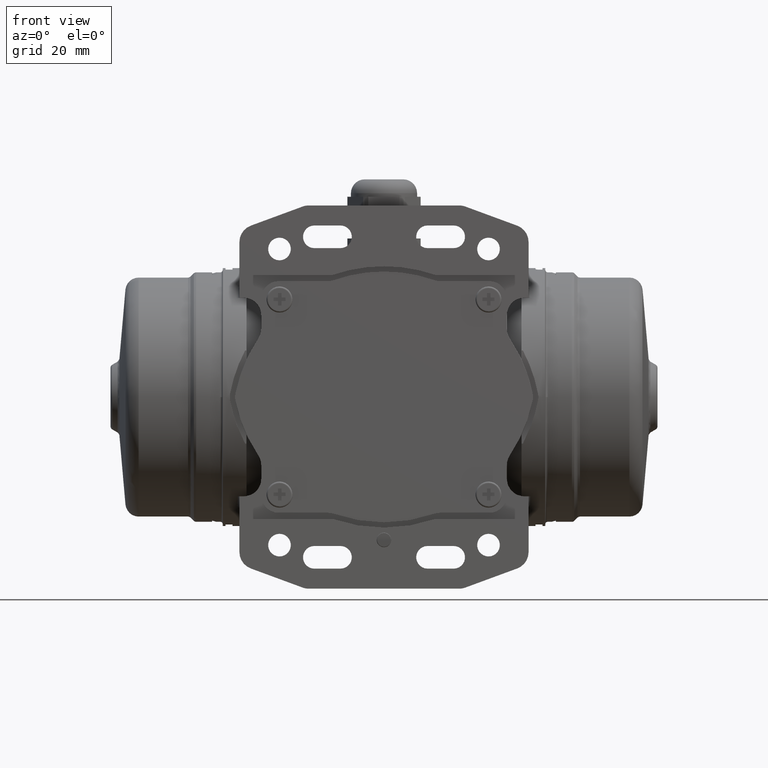
[diagram: clean part render]
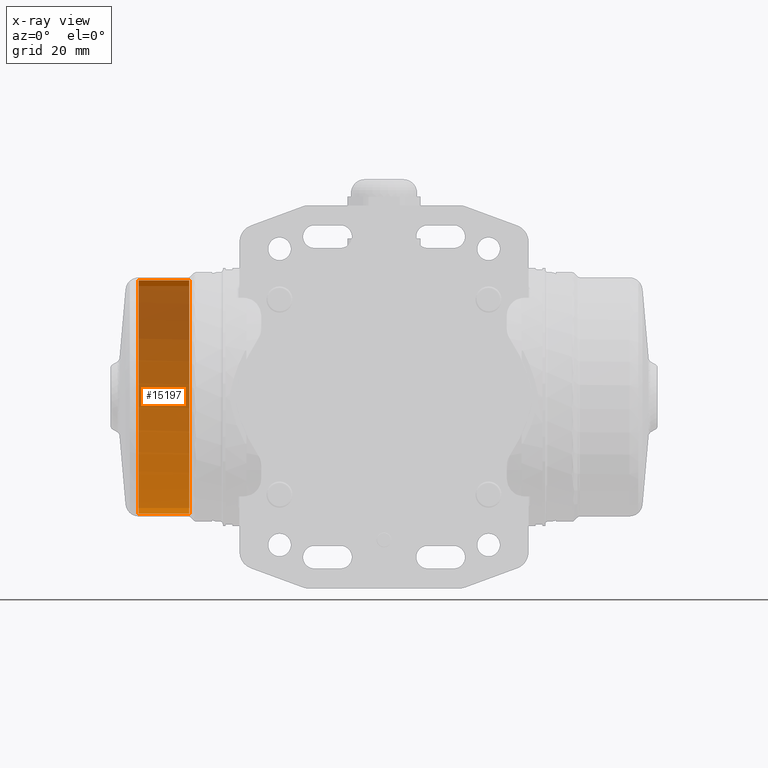
[diagram: x-ray — body ghosted, one internal face saturated and labeled with its STEP entity id]
A machine part, front view, then the same camera in x-ray: the body is ghosted and one INTERNAL B-rep face — a face not visible from any outside direction — is saturated and labeled: STEP entity #15197.
In plain terms, the highlighted cylindrical surface (partial cylindrical patch) has radius 33.5 mm, axis along (-1, -0, 0).
Its self-contained STEP definition (entity closure, byte-faithful):
#15032 = EDGE_CURVE ( 'NONE', #15047, #15035, #23501, .T. ) ;
#15035 = VERTEX_POINT ( 'NONE', #23442 ) ;
#15038 = ORIENTED_EDGE ( 'NONE', *, *, #15187, .F. ) ;
#15047 = VERTEX_POINT ( 'NONE', #23853 ) ;
#15051 = VERTEX_POINT ( 'NONE', #23857 ) ;
#15052 = EDGE_CURVE ( 'NONE', #15047, #15051, #23914, .T. ) ;
#15084 = VERTEX_POINT ( 'NONE', #24025 ) ;
#15094 = EDGE_CURVE ( 'NONE', #15051, #15084, #24053, .T. ) ;
#15098 = ORIENTED_EDGE ( 'NONE', *, *, #15032, .T. ) ;
#15099 = ORIENTED_EDGE ( 'NONE', *, *, #15052, .F. ) ;
#15105 = EDGE_CURVE ( 'NONE', #15165, #15084, #24765, .T. ) ;
#15107 = EDGE_CURVE ( 'NONE', #15188, #15035, #24758, .T. ) ;
#15149 = EDGE_LOOP ( 'NONE', ( #15038, #15198, #15207, #15099, #15098, #15164 ) ) ;
#15164 = ORIENTED_EDGE ( 'NONE', *, *, #15107, .F. ) ;
#15165 = VERTEX_POINT ( 'NONE', #25163 ) ;
#15187 = EDGE_CURVE ( 'NONE', #15165, #15188, #25247, .T. ) ;
#15188 = VERTEX_POINT ( 'NONE', #25170 ) ;
#15197 = ADVANCED_FACE ( 'NONE', ( #25248 ), #25175, .F. ) ;
#15198 = ORIENTED_EDGE ( 'NONE', *, *, #15105, .T. ) ;
#15207 = ORIENTED_EDGE ( 'NONE', *, *, #15094, .F. ) ;
#23442 = CARTESIAN_POINT ( 'NONE',  ( -55.91421356237879100, 6.147856736236090000E-012, -33.49999999005375200 ) ) ;
#23498 = DIRECTION ( 'NONE',  ( 1.000000000000000000, 2.273737000001080000E-020, -4.317589999999999800E-017 ) ) ;
#23499 = VECTOR ( 'NONE', #23498, 1000.000000000000000 ) ;
#23500 = CARTESIAN_POINT ( 'NONE',  ( -73.17975088217959000, 8.085776743671500900E-012, -33.50000000000080300 ) ) ;
#23501 = LINE ( 'NONE', #23500, #23499 ) ;
#23853 = CARTESIAN_POINT ( 'NONE',  ( -70.43075736012619400, 8.117912551412910500E-012, -33.49999999005375200 ) ) ;
#23857 = CARTESIAN_POINT ( 'NONE',  ( -70.43075736012619400, 0.01761616924974500000, -33.49999536821810200 ) ) ;
#23898 = DIRECTION ( 'NONE',  ( 0.0000000000000000000, 0.0000000000000000000, 1.000000000000000000 ) ) ;
#23900 = DIRECTION ( 'NONE',  ( 1.000000000000000000, 2.273737000001080000E-020, -4.317589999999999800E-017 ) ) ;
#23901 = CARTESIAN_POINT ( 'NONE',  ( -70.43075736012619400, 3.469603113320675300E-015, -1.177835536745110000E-016 ) ) ;
#23902 = AXIS2_PLACEMENT_3D ( 'NONE', #23901, #23900, #23898 ) ;
#23914 = CIRCLE ( 'NONE', #23902, 33.50000000000080300 ) ;
#24025 = CARTESIAN_POINT ( 'NONE',  ( -70.43075736012619400, -1.058510615885031900E-012, 33.49999999404180100 ) ) ;
#24053 = B_SPLINE_CURVE_WITH_KNOTS ( 'NONE', 3,
 ( #24253, #24250, #24248, #24246, #24244, #24242, #24240, #24239, #24238, #24236, #24235, #24233, #24231, #24229, #24227, #24225, #24223, #24221, #24219, #24217, #24216 ),
 .UNSPECIFIED., .F., .F.,
 ( 4, 1, 1, 1, 1, 1, 1, 1, 1, 1, 1, 1, 1, 1, 1, 1, 1, 1, 4 ),
 ( 0.0000000000000000000, 0.06250103982584975800, 0.09378924775548677700, 0.1250774556851238000, 0.1875784955109735500, 0.2500795353368235900, 0.2813677432664603000, 0.3126559511960973500, 0.3751569910219471100, 0.4376580308477971400, 0.5001590706736418500, 0.5626601104994916100, 0.6251611503253417000, 0.6876621901511914500, 0.7501632299770392100, 0.8126642698028890800, 0.8751653096287370600, 0.9376663494545868200, 1.000000000000000000 ),
 .UNSPECIFIED. ) ;
#24216 = CARTESIAN_POINT ( 'NONE',  ( -70.43075736012619400, -1.058510615885031900E-012, 33.49999999404180100 ) ) ;
#24217 = CARTESIAN_POINT ( 'NONE',  ( -70.43075736012744400, 2.186679629576986400, 33.49999629656836900 ) ) ;
#24219 = CARTESIAN_POINT ( 'NONE',  ( -70.43075736012744400, 6.565912382635696400, 33.06984949040722900 ) ) ;
#24221 = CARTESIAN_POINT ( 'NONE',  ( -70.43075736012744400, 12.88615260958660100, 31.15625438927595100 ) ) ;
#24223 = CARTESIAN_POINT ( 'NONE',  ( -70.43075736012744400, 18.71683243686569800, 28.04363196237820000 ) ) ;
#24225 = CARTESIAN_POINT ( 'NONE',  ( -70.43075736012744400, 23.82823518371165200, 23.85330884243730100 ) ) ;
#24227 = CARTESIAN_POINT ( 'NONE',  ( -70.43075736012744400, 28.02393111938720000, 18.74631511179240200 ) ) ;
#24229 = CARTESIAN_POINT ( 'NONE',  ( -70.43075736012744400, 31.14268718890560100, 12.91891596415040100 ) ) ;
#24231 = CARTESIAN_POINT ( 'NONE',  ( -70.43075736012754400, 33.06463198782625300, 6.595031611218339600 ) ) ;
#24233 = CARTESIAN_POINT ( 'NONE',  ( -70.43075736012744400, 33.71597849934779800, 0.01777297150663825100 ) ) ;
#24235 = CARTESIAN_POINT ( 'NONE',  ( -70.43075736012744400, 33.07142622409104900, -6.560426481746460100 ) ) ;
#24236 = CARTESIAN_POINT ( 'NONE',  ( -70.43075736012744400, 31.15675117342590300, -12.88555027108422000 ) ) ;
#24238 = CARTESIAN_POINT ( 'NONE',  ( -70.43075736012744400, 28.56031403645370000, -17.74799791046725200 ) ) ;
#24239 = CARTESIAN_POINT ( 'NONE',  ( -70.43075736012744400, 25.94858864051079900, -21.27261234865234800 ) ) ;
#24240 = CARTESIAN_POINT ( 'NONE',  ( -70.43075736012744400, 23.00453188854220000, -24.52492887888705300 ) ) ;
#24242 = CARTESIAN_POINT ( 'NONE',  ( -70.43075736012744400, 18.74654090740340000, -28.02431823603764700 ) ) ;
#24244 = CARTESIAN_POINT ( 'NONE',  ( -70.43075736012744400, 13.88693802733821900, -30.62410519033095100 ) ) ;
#24246 = CARTESIAN_POINT ( 'NONE',  ( -70.43075736012754400, 9.756841751262150800, -32.10380871629969600 ) ) ;
#24248 = CARTESIAN_POINT ( 'NONE',  ( -70.43075736012744400, 5.503229631283520700, -33.17235517492700600 ) ) ;
#24250 = CARTESIAN_POINT ( 'NONE',  ( -70.43075736012744400, 2.206665333947264600, -33.49884424386250000 ) ) ;
#24253 = CARTESIAN_POINT ( 'NONE',  ( -70.43075736012619400, 0.01761616924974500000, -33.49999536821810200 ) ) ;
#24758 = CIRCLE ( 'NONE', #24884, 33.50000000000080300 ) ;
#24760 = DIRECTION ( 'NONE',  ( -1.000000000000000000, -2.273737000001080000E-020, 4.317589999999999800E-017 ) ) ;
#24761 = VECTOR ( 'NONE', #24760, 1000.000000000000000 ) ;
#24763 = CARTESIAN_POINT ( 'NONE',  ( -73.17975088217959000, 3.469540608437834800E-015, 33.50000000000080300 ) ) ;
#24765 = LINE ( 'NONE', #24763, #24761 ) ;
#24770 = CARTESIAN_POINT ( 'NONE',  ( -55.91421356237889700, 3.469933181348120100E-015, -7.445483970316719500E-016 ) ) ;
#24772 = DIRECTION ( 'NONE',  ( -1.000000000000000000, -2.273737000001080000E-020, 4.317589999999999800E-017 ) ) ;
#24883 = DIRECTION ( 'NONE',  ( 0.0000000000000000000, 0.0000000000000000000, 1.000000000000000000 ) ) ;
#24884 = AXIS2_PLACEMENT_3D ( 'NONE', #24770, #24772, #24883 ) ;
#25163 = CARTESIAN_POINT ( 'NONE',  ( -55.91421356237889700, -9.909378944988108200E-015, 33.49999999404180100 ) ) ;
#25170 = CARTESIAN_POINT ( 'NONE',  ( -55.91421356237879100, 0.01761616924973754800, -33.49999536821810200 ) ) ;
#25175 = CYLINDRICAL_SURFACE ( 'NONE', #25239, 33.50000000000080300 ) ;
#25215 = CARTESIAN_POINT ( 'NONE',  ( -55.91421356237879100, 0.01761616924973754800, -33.49999536821810200 ) ) ;
#25217 = CARTESIAN_POINT ( 'NONE',  ( -55.91421356237876900, 2.206665333947264600, -33.49884424386250000 ) ) ;
#25218 = CARTESIAN_POINT ( 'NONE',  ( -55.91421356237887600, 5.503229631283590900, -33.17235517492700600 ) ) ;
#25219 = CARTESIAN_POINT ( 'NONE',  ( -55.91421356237876900, 9.756841751262120600, -32.10380871629969600 ) ) ;
#25220 = CARTESIAN_POINT ( 'NONE',  ( -55.91421356237876900, 13.88693802733821900, -30.62410519033089800 ) ) ;
#25221 = CARTESIAN_POINT ( 'NONE',  ( -55.91421356237876900, 18.74654090740340000, -28.02431823603764700 ) ) ;
#25222 = CARTESIAN_POINT ( 'NONE',  ( -55.91421356237887600, 23.00453188854225000, -24.52492887888705300 ) ) ;
#25223 = CARTESIAN_POINT ( 'NONE',  ( -55.91421356237876900, 25.94858864051079900, -21.27261234865234800 ) ) ;
#25224 = CARTESIAN_POINT ( 'NONE',  ( -55.91421356237887600, 28.56031403645379600, -17.74799791046719800 ) ) ;
#25225 = CARTESIAN_POINT ( 'NONE',  ( -55.91421356237876900, 31.15675117342590300, -12.88555027108425900 ) ) ;
#25226 = CARTESIAN_POINT ( 'NONE',  ( -55.91421356237876900, 33.07142622409104900, -6.560426481746439700 ) ) ;
#25227 = CARTESIAN_POINT ( 'NONE',  ( -55.91421356237876900, 33.71597849934779800, 0.01777297150665214900 ) ) ;
#25228 = CARTESIAN_POINT ( 'NONE',  ( -55.91421356237887600, 33.06463198782625300, 6.595031611218329800 ) ) ;
#25229 = CARTESIAN_POINT ( 'NONE',  ( -55.91421356237876900, 31.14268718890560100, 12.91891596415040100 ) ) ;
#25230 = CARTESIAN_POINT ( 'NONE',  ( -55.91421356237876900, 28.02393111938720000, 18.74631511179240200 ) ) ;
#25233 = CARTESIAN_POINT ( 'NONE',  ( -55.91421356237876900, 23.82823518371165200, 23.85330884243735000 ) ) ;
#25234 = CARTESIAN_POINT ( 'NONE',  ( -55.91421356237876900, 18.71683243686569800, 28.04363196237820000 ) ) ;
#25239 = AXIS2_PLACEMENT_3D ( 'NONE', #25277, #25276, #25275 ) ;
#25241 = CARTESIAN_POINT ( 'NONE',  ( -55.91421356237876900, 12.88615260958660100, 31.15625438927595100 ) ) ;
#25242 = CARTESIAN_POINT ( 'NONE',  ( -55.91421356237876900, 6.565912382636563300, 33.06984949040695900 ) ) ;
#25243 = CARTESIAN_POINT ( 'NONE',  ( -55.91421356237884100, 2.186679629578820400, 33.49999629656819900 ) ) ;
#25244 = CARTESIAN_POINT ( 'NONE',  ( -55.91421356237889700, -9.909378944988108200E-015, 33.49999999404180100 ) ) ;
#25247 = B_SPLINE_CURVE_WITH_KNOTS ( 'NONE', 3,
 ( #25244, #25243, #25242, #25241, #25234, #25233, #25230, #25229, #25228, #25227, #25226, #25225, #25224, #25223, #25222, #25221, #25220, #25219, #25218, #25217, #25215 ),
 .UNSPECIFIED., .F., .F.,
 ( 4, 1, 1, 1, 1, 1, 1, 1, 1, 1, 1, 1, 1, 1, 1, 1, 1, 1, 4 ),
 ( 0.0000000000000000000, 0.06233365054538949500, 0.1248346903712399100, 0.1873357301970903200, 0.2498367700229406100, 0.3123378098487908900, 0.3748388496746412100, 0.4373398895004917400, 0.4998409293263428300, 0.5623419691521941400, 0.6248430089780455700, 0.6873440488038921000, 0.7186322567335318200, 0.7499204646631715300, 0.8124215044890226200, 0.8749225443148693800, 0.9062107522445088700, 0.9374989601741486900, 1.000000000000000000 ),
 .UNSPECIFIED. ) ;
#25248 = FACE_OUTER_BOUND ( 'NONE', #15149, .T. ) ;
#25275 = DIRECTION ( 'NONE',  ( 0.0000000000000000000, 0.0000000000000000000, 1.000000000000000000 ) ) ;
#25276 = DIRECTION ( 'NONE',  ( -1.000000000000000000, -2.273737000001080000E-020, 4.317589999999999800E-017 ) ) ;
#25277 = CARTESIAN_POINT ( 'NONE',  ( -73.17975088217959000, 3.469540608437834800E-015, 9.067157343111720400E-019 ) ) ;